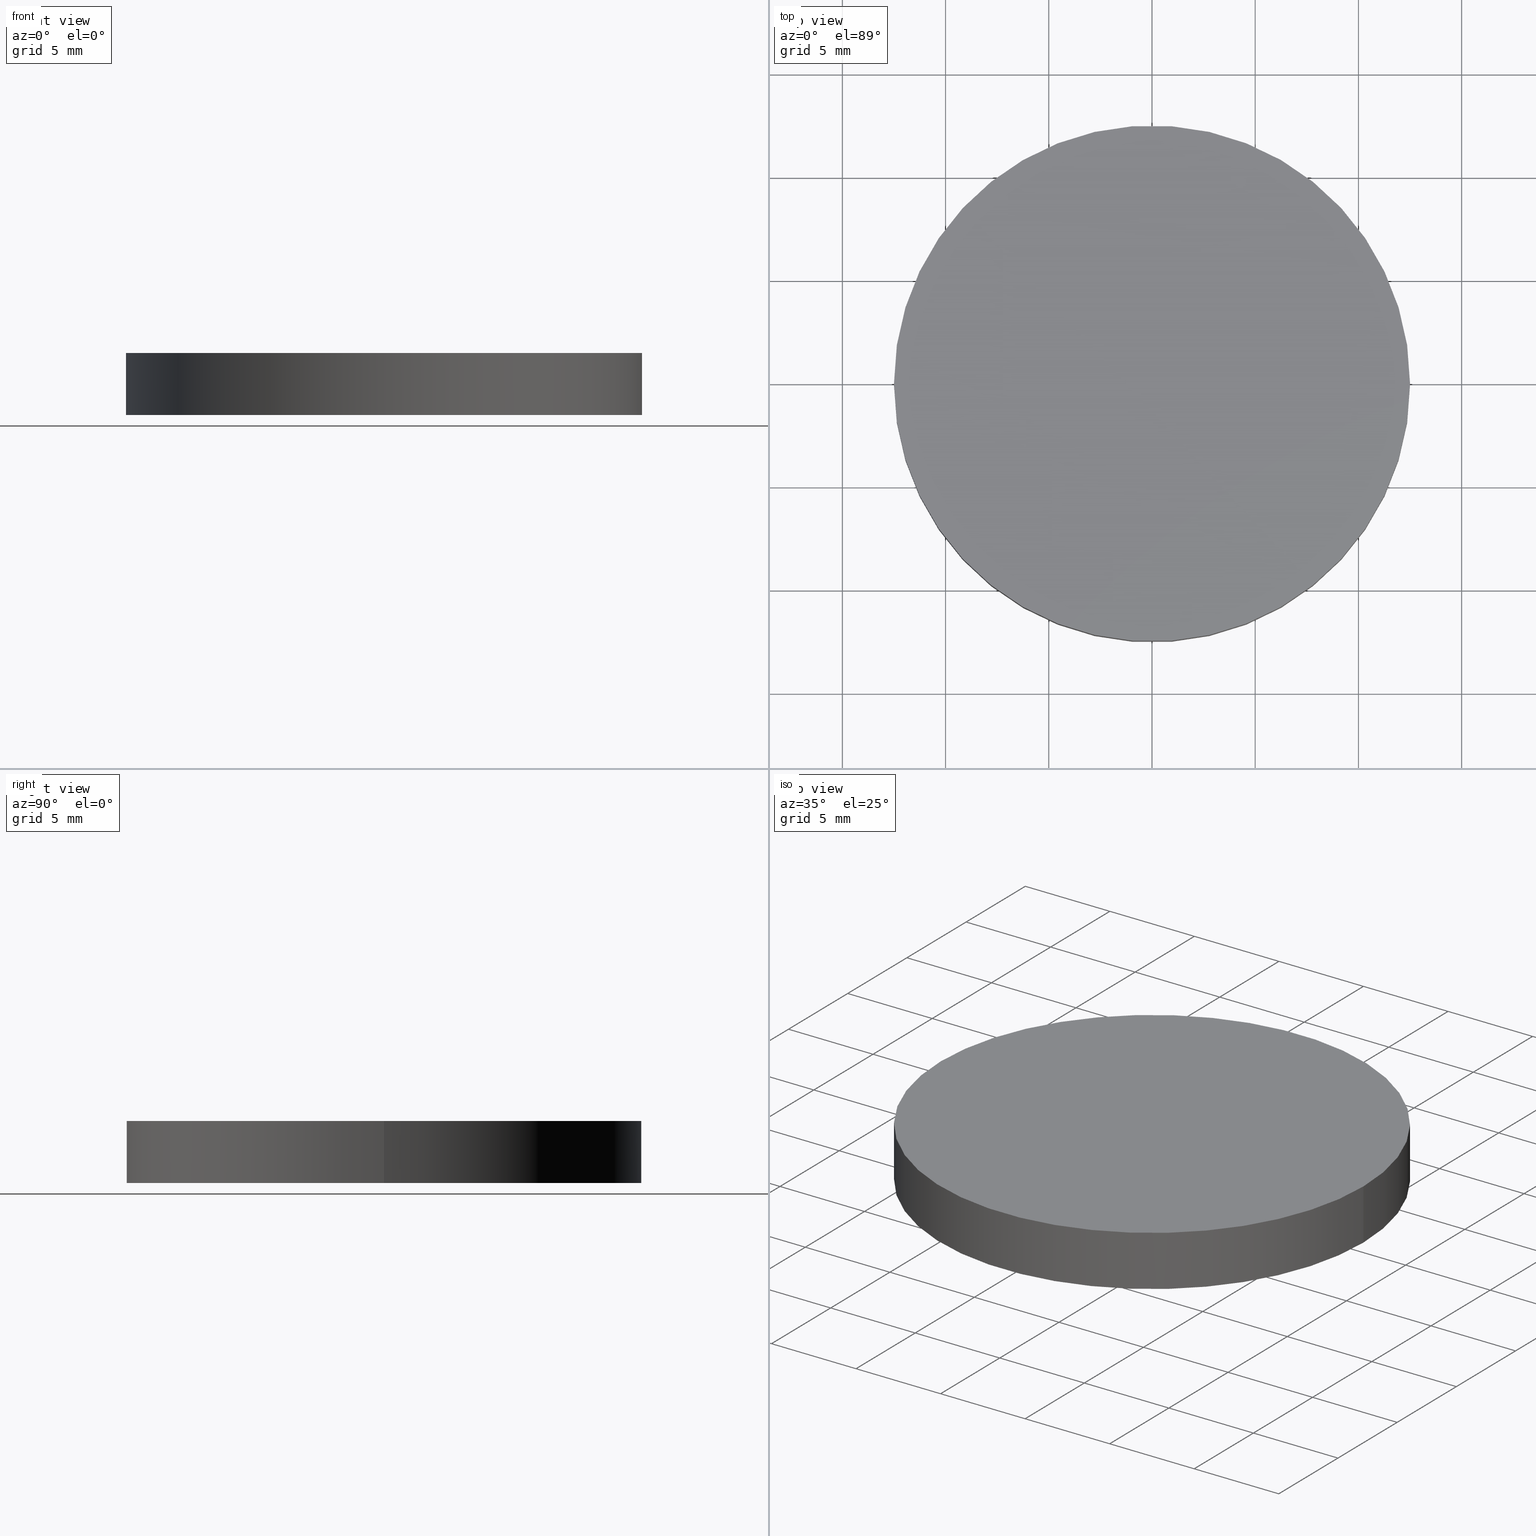
[diagram: canonical four-view strip — front | top / right | iso, engineering-drawing reading convention]
A machine part, canonical four-view strip (front | top / right | iso — engineering-drawing reading convention). The complete STEP part file that produces these views, byte-faithful:
ISO-10303-21;
HEADER;
FILE_DESCRIPTION (( 'STEP AP203' ),
    '1' );
FILE_NAME ('340514.STEP',
    '2019-07-30T07:11:24',
    ( '' ),
    ( '' ),
    'SwSTEP 2.0',
    'SolidWorks 2016',
    '' );
FILE_SCHEMA (( 'CONFIG_CONTROL_DESIGN' ));
ENDSEC;

DATA;
#1 = CC_DESIGN_PERSON_AND_ORGANIZATION_ASSIGNMENT ( #30, #108, ( #68 ) ) ;
#2 = LOCAL_TIME ( 15, 11, 24.00000000000000000, #202 ) ;
#3 = PRODUCT_DEFINITION ( 'δ֪', '', #95, #101 ) ;
#4 = DIRECTION ( 'NONE',  ( 0.0000000000000000000, 0.0000000000000000000, 1.000000000000000000 ) ) ;
#5 = CARTESIAN_POINT ( 'NONE',  ( 0.0000000000000000000, 0.0000000000000000000, 0.0000000000000000000 ) ) ;
#6 = DATE_AND_TIME ( #60, #88 ) ;
#7 = ORIENTED_EDGE ( 'NONE', *, *, #85, .T. ) ;
#8 = AXIS2_PLACEMENT_3D ( 'NONE', #23, #157, #217 ) ;
#9 = DATE_TIME_ROLE ( 'creation_date' ) ;
#10 = DATE_AND_TIME ( #65, #78 ) ;
#11 = APPROVAL_ROLE ( '' ) ;
#12 = PRODUCT_RELATED_PRODUCT_CATEGORY ( 'detail', '', ( #166 ) ) ;
#13 = LOCAL_TIME ( 15, 11, 24.00000000000000000, #118 ) ;
#14 = PERSON_AND_ORGANIZATION_ROLE ( 'creator' ) ;
#15 = PERSON_AND_ORGANIZATION_ROLE ( 'classification_officer' ) ;
#16 = AXIS2_PLACEMENT_3D ( 'NONE', #212, #176, #122 ) ;
#17 = COORDINATED_UNIVERSAL_TIME_OFFSET ( 8, 0, .AHEAD. ) ;
#18 = CC_DESIGN_PERSON_AND_ORGANIZATION_ASSIGNMENT ( #164, #14, ( #142 ) ) ;
#19 = COORDINATED_UNIVERSAL_TIME_OFFSET ( 8, 0, .AHEAD. ) ;
#20 = CARTESIAN_POINT ( 'NONE',  ( 12.50000000000000000, 1.530808498934191500E-015, 3.000000000000000000 ) ) ;
#21 = PERSON_AND_ORGANIZATION ( #211, #31 ) ;
#22 = CYLINDRICAL_SURFACE ( 'NONE', #92, 12.50000000000000000 ) ;
#23 = CARTESIAN_POINT ( 'NONE',  ( 0.0000000000000000000, 0.0000000000000000000, 0.0000000000000000000 ) ) ;
#24 = DIRECTION ( 'NONE',  ( -0.0000000000000000000, -0.0000000000000000000, -1.000000000000000000 ) ) ;
#25 = AXIS2_PLACEMENT_3D ( 'NONE', #113, #59, #156 ) ;
#26 = CARTESIAN_POINT ( 'NONE',  ( 0.0000000000000000000, 0.0000000000000000000, 3.000000000000000000 ) ) ;
#27 = ORIENTED_EDGE ( 'NONE', *, *, #49, .F. ) ;
#28 = DIRECTION ( 'NONE',  ( 1.000000000000000000, 0.0000000000000000000, 0.0000000000000000000 ) ) ;
#29 = DIRECTION ( 'NONE',  ( 1.000000000000000000, 0.0000000000000000000, 0.0000000000000000000 ) ) ;
#30 = PERSON_AND_ORGANIZATION ( #211, #31 ) ;
#31 = ORGANIZATION ( 'δָ��', 'δָ��', '' ) ;
#32 = CIRCLE ( 'NONE', #41, 12.50000000000000000 ) ;
#33 = CC_DESIGN_PERSON_AND_ORGANIZATION_ASSIGNMENT ( #53, #228, ( #58 ) ) ;
#34 = COORDINATED_UNIVERSAL_TIME_OFFSET ( 8, 0, .AHEAD. ) ;
#35 = CC_DESIGN_DATE_AND_TIME_ASSIGNMENT ( #86, #71, ( #68 ) ) ;
#36 = CC_DESIGN_DATE_AND_TIME_ASSIGNMENT ( #129, #110, ( #133 ) ) ;
#37 = SHAPE_DEFINITION_REPRESENTATION ( #199, #184 ) ;
#38 = APPROVAL_STATUS ( 'not_yet_approved' ) ;
#39 = VERTEX_POINT ( 'NONE', #236 ) ;
#40 = APPROVAL_ROLE ( '' ) ;
#41 = AXIS2_PLACEMENT_3D ( 'NONE', #214, #137, #117 ) ;
#42 = EDGE_LOOP ( 'NONE', ( #57, #127, #135, #87 ) ) ;
#43 = APPROVAL_PERSON_ORGANIZATION ( #112, #168, #246 ) ;
#44 = CLOSED_SHELL ( 'NONE', ( #81, #237, #159, #138 ) ) ;
#45 = CARTESIAN_POINT ( 'NONE',  ( -12.50000000000000000, 0.0000000000000000000, 0.0000000000000000000 ) ) ;
#46 = CYLINDRICAL_SURFACE ( 'NONE', #177, 12.50000000000000000 ) ;
#47 = DIRECTION ( 'NONE',  ( -0.0000000000000000000, -0.0000000000000000000, -1.000000000000000000 ) ) ;
#48 = PRODUCT_RELATED_PRODUCT_CATEGORY ( 'detail', '', ( #93 ) ) ;
#49 = EDGE_CURVE ( 'NONE', #148, #104, #32, .T. ) ;
#50 = MECHANICAL_CONTEXT ( 'NONE', #224, 'mechanical' ) ;
#51 = CC_DESIGN_DATE_AND_TIME_ASSIGNMENT ( #152, #249, ( #142 ) ) ;
#52 = APPLICATION_CONTEXT ( 'configuration controlled 3d designs of mechanical parts and assemblies' ) ;
#53 = PERSON_AND_ORGANIZATION ( #211, #31 ) ;
#54 = CIRCLE ( 'NONE', #125, 12.50000000000000000 ) ;
#55 = DATE_AND_TIME ( #172, #147 ) ;
#56 = LOCAL_TIME ( 15, 11, 24.00000000000000000, #227 ) ;
#57 = ORIENTED_EDGE ( 'NONE', *, *, #85, .F. ) ;
#58 = PRODUCT_DEFINITION_FORMATION_WITH_SPECIFIED_SOURCE ( '�κ�', '', #93, .NOT_KNOWN. ) ;
#59 = DIRECTION ( 'NONE',  ( 0.0000000000000000000, 0.0000000000000000000, 1.000000000000000000 ) ) ;
#60 = CALENDAR_DATE ( 2019, 30, 7 ) ;
#61 = DIRECTION ( 'NONE',  ( 0.0000000000000000000, 0.0000000000000000000, 1.000000000000000000 ) ) ;
#62 = COORDINATED_UNIVERSAL_TIME_OFFSET ( 8, 0, .AHEAD. ) ;
#63 = PERSON_AND_ORGANIZATION_ROLE ( 'design_owner' ) ;
#64 = APPLICATION_PROTOCOL_DEFINITION ( 'international standard', 'config_control_design', 1994, #197 ) ;
#65 = CALENDAR_DATE ( 2019, 30, 7 ) ;
#66 = LOCAL_TIME ( 15, 11, 24.00000000000000000, #234 ) ;
#67 = PERSON_AND_ORGANIZATION_ROLE ( 'creator' ) ;
#68 = SECURITY_CLASSIFICATION ( '', '', #230 ) ;
#69 = SECURITY_CLASSIFICATION_LEVEL ( 'unclassified' ) ;
#70 = APPROVAL_STATUS ( 'not_yet_approved' ) ;
#71 = DATE_TIME_ROLE ( 'classification_date' ) ;
#72 = UNCERTAINTY_MEASURE_WITH_UNIT (LENGTH_MEASURE( 1.000000000000000100E-005 ), #119, 'distance_accuracy_value', 'NONE');
#73 = AXIS2_PLACEMENT_3D ( 'NONE', #238, #4, #183 ) ;
#74 = ORIENTED_EDGE ( 'NONE', *, *, #209, .F. ) ;
#75 = APPROVAL ( #151, 'δָ��' ) ;
#76 = DESIGN_CONTEXT ( 'detailed design', #128, 'design' ) ;
#77 = MANIFOLD_SOLID_BREP ( '͹̨-����1', #44 ) ;
#78 = LOCAL_TIME ( 15, 11, 24.00000000000000000, #17 ) ;
#79 = VECTOR ( 'NONE', #24, 1000.000000000000000 ) ;
#80 = PLANE ( 'NONE',  #25 ) ;
#81 = ADVANCED_FACE ( 'NONE', ( #182 ), #22, .T. ) ;
#82 = DIRECTION ( 'NONE',  ( -1.000000000000000000, 0.0000000000000000000, 0.0000000000000000000 ) ) ;
#83 = LINE ( 'NONE', #195, #145 ) ;
#84 = APPROVAL ( #165, 'δָ��' ) ;
#85 = EDGE_CURVE ( 'NONE', #39, #104, #124, .T. ) ;
#86 = DATE_AND_TIME ( #139, #100 ) ;
#87 = ORIENTED_EDGE ( 'NONE', *, *, #49, .T. ) ;
#88 = LOCAL_TIME ( 15, 11, 24.00000000000000000, #96 ) ;
#89 = ORIENTED_EDGE ( 'NONE', *, *, #242, .T. ) ;
#90 = APPROVAL_STATUS ( 'not_yet_approved' ) ;
#91 = PERSON_AND_ORGANIZATION_ROLE ( 'creator' ) ;
#92 = AXIS2_PLACEMENT_3D ( 'NONE', #196, #115, #82 ) ;
#93 = PRODUCT ( '340514', '340514', '', ( #207 ) ) ;
#94 = APPROVAL_PERSON_ORGANIZATION ( #194, #84, #11 ) ;
#95 = PRODUCT_DEFINITION_FORMATION_WITH_SPECIFIED_SOURCE ( '�κ�', '', #166, .NOT_KNOWN. ) ;
#96 = COORDINATED_UNIVERSAL_TIME_OFFSET ( 8, 0, .AHEAD. ) ;
#97 = FACE_OUTER_BOUND ( 'NONE', #198, .T. ) ;
#98 = DIRECTION ( 'NONE',  ( 1.000000000000000000, 0.0000000000000000000, 0.0000000000000000000 ) ) ;
#99 = AXIS2_PLACEMENT_3D ( 'NONE', #26, #221, #28 ) ;
#100 = LOCAL_TIME ( 15, 11, 24.00000000000000000, #19 ) ;
#101 = DESIGN_CONTEXT ( 'detailed design', #197, 'design' ) ;
#102 = PERSON_AND_ORGANIZATION ( #211, #31 ) ;
#103 = APPROVAL_DATE_TIME ( #162, #84 ) ;
#104 = VERTEX_POINT ( 'NONE', #235 ) ;
#105 = LOCAL_TIME ( 15, 11, 24.00000000000000000, #34 ) ;
#106 = LOCAL_TIME ( 15, 11, 24.00000000000000000, #114 ) ;
#107 = CC_DESIGN_PERSON_AND_ORGANIZATION_ASSIGNMENT ( #248, #67, ( #3 ) ) ;
#108 = PERSON_AND_ORGANIZATION_ROLE ( 'classification_officer' ) ;
#109 = APPROVAL_PERSON_ORGANIZATION ( #215, #201, #150 ) ;
#110 = DATE_TIME_ROLE ( 'classification_date' ) ;
#111 = PERSON_AND_ORGANIZATION_ROLE ( 'creator' ) ;
#112 = PERSON_AND_ORGANIZATION ( #211, #31 ) ;
#113 = CARTESIAN_POINT ( 'NONE',  ( 0.0000000000000000000, 0.0000000000000000000, 3.000000000000000000 ) ) ;
#114 = COORDINATED_UNIVERSAL_TIME_OFFSET ( 8, 0, .AHEAD. ) ;
#115 = DIRECTION ( 'NONE',  ( -0.0000000000000000000, -0.0000000000000000000, -1.000000000000000000 ) ) ;
#116 = DIRECTION ( 'NONE',  ( -1.000000000000000000, 0.0000000000000000000, 0.0000000000000000000 ) ) ;
#117 = DIRECTION ( 'NONE',  ( 1.000000000000000000, 0.0000000000000000000, 0.0000000000000000000 ) ) ;
#118 = COORDINATED_UNIVERSAL_TIME_OFFSET ( 8, 0, .AHEAD. ) ;
#119 =( LENGTH_UNIT ( ) NAMED_UNIT ( * ) SI_UNIT ( .MILLI., .METRE. ) );
#120 = CC_DESIGN_DATE_AND_TIME_ASSIGNMENT ( #55, #9, ( #3 ) ) ;
#121 =( NAMED_UNIT ( * ) SI_UNIT ( $, .STERADIAN. ) SOLID_ANGLE_UNIT ( ) );
#122 = DIRECTION ( 'NONE',  ( 1.000000000000000000, 0.0000000000000000000, 0.0000000000000000000 ) ) ;
#123 = PERSON_AND_ORGANIZATION ( #211, #31 ) ;
#124 = LINE ( 'NONE', #20, #79 ) ;
#125 = AXIS2_PLACEMENT_3D ( 'NONE', #136, #61, #98 ) ;
#126 = PERSON_AND_ORGANIZATION ( #211, #31 ) ;
#127 = ORIENTED_EDGE ( 'NONE', *, *, #242, .F. ) ;
#128 = APPLICATION_CONTEXT ( 'configuration controlled 3d designs of mechanical parts and assemblies' ) ;
#129 = DATE_AND_TIME ( #252, #106 ) ;
#130 = VERTEX_POINT ( 'NONE', #160 ) ;
#131 = PRODUCT_DEFINITION_SHAPE ( 'NONE', 'NONE',  #3 ) ;
#132 = APPLICATION_PROTOCOL_DEFINITION ( 'international standard', 'config_control_design', 1994, #128 ) ;
#133 = SECURITY_CLASSIFICATION ( '', '', #69 ) ;
#134 = APPROVAL_DATE_TIME ( #10, #192 ) ;
#135 = ORIENTED_EDGE ( 'NONE', *, *, #232, .T. ) ;
#136 = CARTESIAN_POINT ( 'NONE',  ( 0.0000000000000000000, 0.0000000000000000000, 3.000000000000000000 ) ) ;
#137 = DIRECTION ( 'NONE',  ( 0.0000000000000000000, 0.0000000000000000000, 1.000000000000000000 ) ) ;
#138 = ADVANCED_FACE ( 'NONE', ( #253 ), #175, .F. ) ;
#139 = CALENDAR_DATE ( 2019, 30, 7 ) ;
#140 = CIRCLE ( 'NONE', #73, 12.50000000000000000 ) ;
#141 =( GEOMETRIC_REPRESENTATION_CONTEXT ( 3 ) GLOBAL_UNCERTAINTY_ASSIGNED_CONTEXT ( ( #72 ) ) GLOBAL_UNIT_ASSIGNED_CONTEXT ( ( #119, #179, #121 ) ) REPRESENTATION_CONTEXT ( 'NONE', 'WORKASPACE' ) );
#142 = PRODUCT_DEFINITION ( 'δ֪', '', #58, #76 ) ;
#143 = APPLICATION_PROTOCOL_DEFINITION ( 'international standard', 'config_control_design', 1994, #224 ) ;
#144 = APPROVAL_DATE_TIME ( #155, #154 ) ;
#145 = VECTOR ( 'NONE', #47, 1000.000000000000000 ) ;
#146 = DIRECTION ( 'NONE',  ( 0.0000000000000000000, 0.0000000000000000000, 1.000000000000000000 ) ) ;
#147 = LOCAL_TIME ( 15, 11, 24.00000000000000000, #62 ) ;
#148 = VERTEX_POINT ( 'NONE', #45 ) ;
#149 = CC_DESIGN_PERSON_AND_ORGANIZATION_ASSIGNMENT ( #21, #15, ( #133 ) ) ;
#150 = APPROVAL_ROLE ( '' ) ;
#151 = APPROVAL_STATUS ( 'not_yet_approved' ) ;
#152 = DATE_AND_TIME ( #169, #66 ) ;
#153 = ORIENTED_EDGE ( 'NONE', *, *, #209, .T. ) ;
#154 = APPROVAL ( #38, 'δָ��' ) ;
#155 = DATE_AND_TIME ( #223, #13 ) ;
#156 = DIRECTION ( 'NONE',  ( 1.000000000000000000, 0.0000000000000000000, -0.0000000000000000000 ) ) ;
#157 = DIRECTION ( 'NONE',  ( 0.0000000000000000000, 0.0000000000000000000, 1.000000000000000000 ) ) ;
#158 = PERSON_AND_ORGANIZATION ( #211, #31 ) ;
#159 = ADVANCED_FACE ( 'NONE', ( #97 ), #80, .T. ) ;
#160 = CARTESIAN_POINT ( 'NONE',  ( -12.50000000000000000, 0.0000000000000000000, 3.000000000000000000 ) ) ;
#161 = DIRECTION ( 'NONE',  ( -0.0000000000000000000, -0.0000000000000000000, -1.000000000000000000 ) ) ;
#162 = DATE_AND_TIME ( #181, #56 ) ;
#163 = CC_DESIGN_APPROVAL ( #75, ( #68 ) ) ;
#164 = PERSON_AND_ORGANIZATION ( #211, #31 ) ;
#165 = APPROVAL_STATUS ( 'not_yet_approved' ) ;
#166 = PRODUCT ( '340514', '340514', '', ( #50 ) ) ;
#167 = PERSON_AND_ORGANIZATION ( #211, #31 ) ;
#168 = APPROVAL ( #70, 'δָ��' ) ;
#169 = CALENDAR_DATE ( 2019, 30, 7 ) ;
#170 = PERSON_AND_ORGANIZATION_ROLE ( 'design_owner' ) ;
#171 = DATE_AND_TIME ( #222, #105 ) ;
#172 = CALENDAR_DATE ( 2019, 30, 7 ) ;
#173 = CC_DESIGN_PERSON_AND_ORGANIZATION_ASSIGNMENT ( #167, #63, ( #166 ) ) ;
#174 = APPROVAL_PERSON_ORGANIZATION ( #193, #154, #210 ) ;
#175 = PLANE ( 'NONE',  #8 ) ;
#176 = DIRECTION ( 'NONE',  ( 0.0000000000000000000, 0.0000000000000000000, 1.000000000000000000 ) ) ;
#177 = AXIS2_PLACEMENT_3D ( 'NONE', #216, #161, #116 ) ;
#178 = ORIENTED_EDGE ( 'NONE', *, *, #247, .F. ) ;
#179 =( NAMED_UNIT ( * ) PLANE_ANGLE_UNIT ( ) SI_UNIT ( $, .RADIAN. ) );
#180 = CC_DESIGN_APPROVAL ( #154, ( #142 ) ) ;
#181 = CALENDAR_DATE ( 2019, 30, 7 ) ;
#182 = FACE_OUTER_BOUND ( 'NONE', #203, .T. ) ;
#183 = DIRECTION ( 'NONE',  ( 1.000000000000000000, 0.0000000000000000000, 0.0000000000000000000 ) ) ;
#184 = ADVANCED_BREP_SHAPE_REPRESENTATION ( '340514', ( #77, #16 ), #141 ) ;
#185 = ORIENTED_EDGE ( 'NONE', *, *, #247, .T. ) ;
#186 = CC_DESIGN_SECURITY_CLASSIFICATION ( #68, ( #58 ) ) ;
#187 = PERSON_AND_ORGANIZATION ( #211, #31 ) ;
#188 = EDGE_LOOP ( 'NONE', ( #27, #178 ) ) ;
#189 = CC_DESIGN_PERSON_AND_ORGANIZATION_ASSIGNMENT ( #187, #111, ( #95 ) ) ;
#190 = FACE_OUTER_BOUND ( 'NONE', #42, .T. ) ;
#191 = AXIS2_PLACEMENT_3D ( 'NONE', #5, #146, #29 ) ;
#192 = APPROVAL ( #200, 'δָ��' ) ;
#193 = PERSON_AND_ORGANIZATION ( #211, #31 ) ;
#194 = PERSON_AND_ORGANIZATION ( #211, #31 ) ;
#195 = CARTESIAN_POINT ( 'NONE',  ( -12.50000000000000000, 0.0000000000000000000, 3.000000000000000000 ) ) ;
#196 = CARTESIAN_POINT ( 'NONE',  ( 0.0000000000000000000, 0.0000000000000000000, 3.000000000000000000 ) ) ;
#197 = APPLICATION_CONTEXT ( 'configuration controlled 3d designs of mechanical parts and assemblies' ) ;
#198 = EDGE_LOOP ( 'NONE', ( #89, #153 ) ) ;
#199 = PRODUCT_DEFINITION_SHAPE ( 'NONE', 'NONE',  #142 ) ;
#200 = APPROVAL_STATUS ( 'not_yet_approved' ) ;
#201 = APPROVAL ( #90, 'δָ��' ) ;
#202 = COORDINATED_UNIVERSAL_TIME_OFFSET ( 8, 0, .AHEAD. ) ;
#203 = EDGE_LOOP ( 'NONE', ( #74, #7, #185, #240 ) ) ;
#204 = APPROVAL_ROLE ( '' ) ;
#205 = CC_DESIGN_APPROVAL ( #84, ( #95 ) ) ;
#206 = APPROVAL_DATE_TIME ( #219, #168 ) ;
#207 = MECHANICAL_CONTEXT ( 'NONE', #52, 'mechanical' ) ;
#208 = APPROVAL_DATE_TIME ( #6, #201 ) ;
#209 = EDGE_CURVE ( 'NONE', #39, #130, #54, .T. ) ;
#210 = APPROVAL_ROLE ( '' ) ;
#211 = PERSON ( 'δָ��', 'δָ��', 'δָ��', ('δָ��'), ('δָ��'), ('δָ��') ) ;
#212 = CARTESIAN_POINT ( 'NONE',  ( 0.0000000000000000000, 0.0000000000000000000, 0.0000000000000000000 ) ) ;
#213 = CC_DESIGN_SECURITY_CLASSIFICATION ( #133, ( #95 ) ) ;
#214 = CARTESIAN_POINT ( 'NONE',  ( 0.0000000000000000000, 0.0000000000000000000, 0.0000000000000000000 ) ) ;
#215 = PERSON_AND_ORGANIZATION ( #211, #31 ) ;
#216 = CARTESIAN_POINT ( 'NONE',  ( 0.0000000000000000000, 0.0000000000000000000, 3.000000000000000000 ) ) ;
#217 = DIRECTION ( 'NONE',  ( 1.000000000000000000, 0.0000000000000000000, -0.0000000000000000000 ) ) ;
#218 = APPROVAL_DATE_TIME ( #171, #75 ) ;
#219 = DATE_AND_TIME ( #245, #2 ) ;
#220 = CC_DESIGN_PERSON_AND_ORGANIZATION_ASSIGNMENT ( #123, #229, ( #95 ) ) ;
#221 = DIRECTION ( 'NONE',  ( 0.0000000000000000000, 0.0000000000000000000, 1.000000000000000000 ) ) ;
#222 = CALENDAR_DATE ( 2019, 30, 7 ) ;
#223 = CALENDAR_DATE ( 2019, 30, 7 ) ;
#224 = APPLICATION_CONTEXT ( 'configuration controlled 3d designs of mechanical parts and assemblies' ) ;
#225 = APPLICATION_PROTOCOL_DEFINITION ( 'international standard', 'config_control_design', 1994, #52 ) ;
#226 = CC_DESIGN_APPROVAL ( #192, ( #3 ) ) ;
#227 = COORDINATED_UNIVERSAL_TIME_OFFSET ( 8, 0, .AHEAD. ) ;
#228 = PERSON_AND_ORGANIZATION_ROLE ( 'design_supplier' ) ;
#229 = PERSON_AND_ORGANIZATION_ROLE ( 'design_supplier' ) ;
#230 = SECURITY_CLASSIFICATION_LEVEL ( 'unclassified' ) ;
#231 = CIRCLE ( 'NONE', #99, 12.50000000000000000 ) ;
#232 = EDGE_CURVE ( 'NONE', #130, #148, #83, .T. ) ;
#233 = CC_DESIGN_APPROVAL ( #168, ( #133 ) ) ;
#234 = COORDINATED_UNIVERSAL_TIME_OFFSET ( 8, 0, .AHEAD. ) ;
#235 = CARTESIAN_POINT ( 'NONE',  ( 12.50000000000000000, 1.530808498934191500E-015, 0.0000000000000000000 ) ) ;
#236 = CARTESIAN_POINT ( 'NONE',  ( 12.50000000000000000, 1.530808498934191500E-015, 3.000000000000000000 ) ) ;
#237 = ADVANCED_FACE ( 'NONE', ( #190 ), #46, .T. ) ;
#238 = CARTESIAN_POINT ( 'NONE',  ( 0.0000000000000000000, 0.0000000000000000000, 0.0000000000000000000 ) ) ;
#239 = APPROVAL_PERSON_ORGANIZATION ( #102, #192, #204 ) ;
#240 = ORIENTED_EDGE ( 'NONE', *, *, #232, .F. ) ;
#241 = CC_DESIGN_APPROVAL ( #201, ( #58 ) ) ;
#242 = EDGE_CURVE ( 'NONE', #130, #39, #231, .T. ) ;
#243 = CC_DESIGN_PERSON_AND_ORGANIZATION_ASSIGNMENT ( #250, #170, ( #93 ) ) ;
#244 = APPROVAL_PERSON_ORGANIZATION ( #126, #75, #40 ) ;
#245 = CALENDAR_DATE ( 2019, 30, 7 ) ;
#246 = APPROVAL_ROLE ( '' ) ;
#247 = EDGE_CURVE ( 'NONE', #104, #148, #140, .T. ) ;
#248 = PERSON_AND_ORGANIZATION ( #211, #31 ) ;
#249 = DATE_TIME_ROLE ( 'creation_date' ) ;
#250 = PERSON_AND_ORGANIZATION ( #211, #31 ) ;
#251 = CC_DESIGN_PERSON_AND_ORGANIZATION_ASSIGNMENT ( #158, #91, ( #58 ) ) ;
#252 = CALENDAR_DATE ( 2019, 30, 7 ) ;
#253 = FACE_OUTER_BOUND ( 'NONE', #188, .T. ) ;
ENDSEC;
END-ISO-10303-21;
